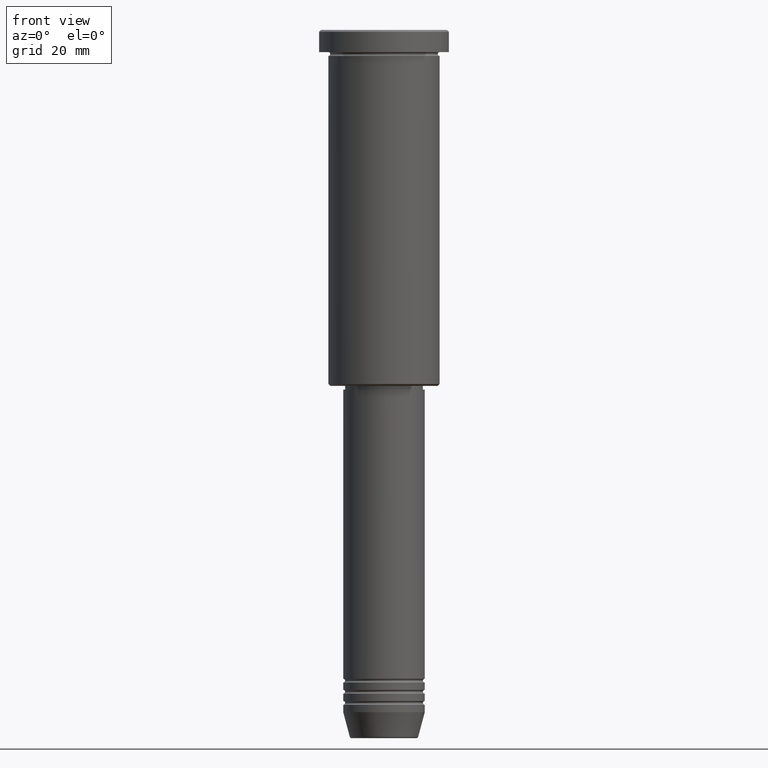
[diagram: clean part render]
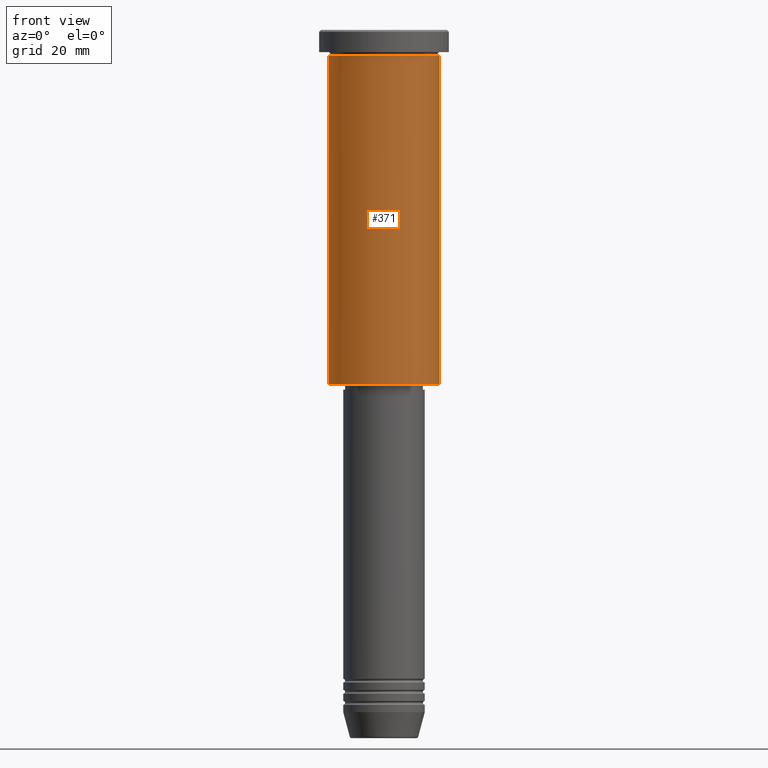
[diagram: same view with one face highlighted and labeled with its STEP entity id]
A machine part, front view. The second image highlights one B-rep face of the part: STEP entity #371.
In plain terms, the highlighted cylindrical surface (partial cylindrical patch) has radius 15 mm, axis along (-0, -0, 1).
Its self-contained STEP definition (entity closure, byte-faithful):
#2 = AXIS2_PLACEMENT_3D ( 'NONE', #166, #358, #889 ) ;
#14 = CARTESIAN_POINT ( 'NONE',  ( 0.000000000000000000, 0.000000000000000000, -6.999999999999995559 ) ) ;
#19 = EDGE_CURVE ( 'NONE', #781, #1150, #1167, .T. ) ;
#47 = DIRECTION ( 'NONE',  ( 1.000000000000000000, 0.000000000000000000, 0.000000000000000000 ) ) ;
#58 = CARTESIAN_POINT ( 'NONE',  ( 15.00000000000000000, 0.000000000000000000, -95.49999999999997158 ) ) ;
#164 = VERTEX_POINT ( 'NONE', #58 ) ;
#166 = CARTESIAN_POINT ( 'NONE',  ( 0.000000000000000000, 0.000000000000000000, -95.49999999999997158 ) ) ;
#179 = AXIS2_PLACEMENT_3D ( 'NONE', #14, #1110, #951 ) ;
#213 = EDGE_CURVE ( 'NONE', #781, #164, #816, .T. ) ;
#356 = DIRECTION ( 'NONE',  ( -0.000000000000000000, -0.000000000000000000, 1.000000000000000000 ) ) ;
#358 = DIRECTION ( 'NONE',  ( -0.000000000000000000, -0.000000000000000000, 1.000000000000000000 ) ) ;
#371 = ADVANCED_FACE ( 'NONE', ( #968 ), #511, .T. ) ;
#414 = VECTOR ( 'NONE', #885, 1000.000000000000000 ) ;
#466 = ORIENTED_EDGE ( 'NONE', *, *, #19, .F. ) ;
#511 = CYLINDRICAL_SURFACE ( 'NONE', #960, 15.00000000000000000 ) ;
#524 = CARTESIAN_POINT ( 'NONE',  ( 15.00000000000000000, 0.000000000000000000, 0.000000000000000000 ) ) ;
#543 = CIRCLE ( 'NONE', #179, 15.00000000000000000 ) ;
#590 = ORIENTED_EDGE ( 'NONE', *, *, #594, .F. ) ;
#594 = EDGE_CURVE ( 'NONE', #1150, #788, #543, .T. ) ;
#609 = ORIENTED_EDGE ( 'NONE', *, *, #213, .T. ) ;
#611 = CARTESIAN_POINT ( 'NONE',  ( -15.00000000000000000, 1.836970198721029589E-15, -95.49999999999997158 ) ) ;
#619 = EDGE_LOOP ( 'NONE', ( #466, #609, #1062, #590 ) ) ;
#676 = CARTESIAN_POINT ( 'NONE',  ( -15.00000000000000000, 1.836970198721029589E-15, -6.999999999999995559 ) ) ;
#709 = VECTOR ( 'NONE', #356, 1000.000000000000000 ) ;
#774 = EDGE_CURVE ( 'NONE', #164, #788, #875, .T. ) ;
#781 = VERTEX_POINT ( 'NONE', #611 ) ;
#788 = VERTEX_POINT ( 'NONE', #1139 ) ;
#816 = CIRCLE ( 'NONE', #2, 15.00000000000000000 ) ;
#871 = DIRECTION ( 'NONE',  ( -0.000000000000000000, -0.000000000000000000, 1.000000000000000000 ) ) ;
#875 = LINE ( 'NONE', #524, #414 ) ;
#885 = DIRECTION ( 'NONE',  ( -0.000000000000000000, -0.000000000000000000, 1.000000000000000000 ) ) ;
#889 = DIRECTION ( 'NONE',  ( -1.000000000000000000, 0.000000000000000000, 0.000000000000000000 ) ) ;
#951 = DIRECTION ( 'NONE',  ( 1.000000000000000000, 0.000000000000000000, 0.000000000000000000 ) ) ;
#960 = AXIS2_PLACEMENT_3D ( 'NONE', #1043, #871, #47 ) ;
#968 = FACE_OUTER_BOUND ( 'NONE', #619, .T. ) ;
#1043 = CARTESIAN_POINT ( 'NONE',  ( 0.000000000000000000, 0.000000000000000000, 0.000000000000000000 ) ) ;
#1062 = ORIENTED_EDGE ( 'NONE', *, *, #774, .T. ) ;
#1084 = CARTESIAN_POINT ( 'NONE',  ( -15.00000000000000000, 1.836970198721029589E-15, 0.000000000000000000 ) ) ;
#1110 = DIRECTION ( 'NONE',  ( -0.000000000000000000, -0.000000000000000000, 1.000000000000000000 ) ) ;
#1139 = CARTESIAN_POINT ( 'NONE',  ( 15.00000000000000000, 0.000000000000000000, -6.999999999999995559 ) ) ;
#1150 = VERTEX_POINT ( 'NONE', #676 ) ;
#1167 = LINE ( 'NONE', #1084, #709 ) ;